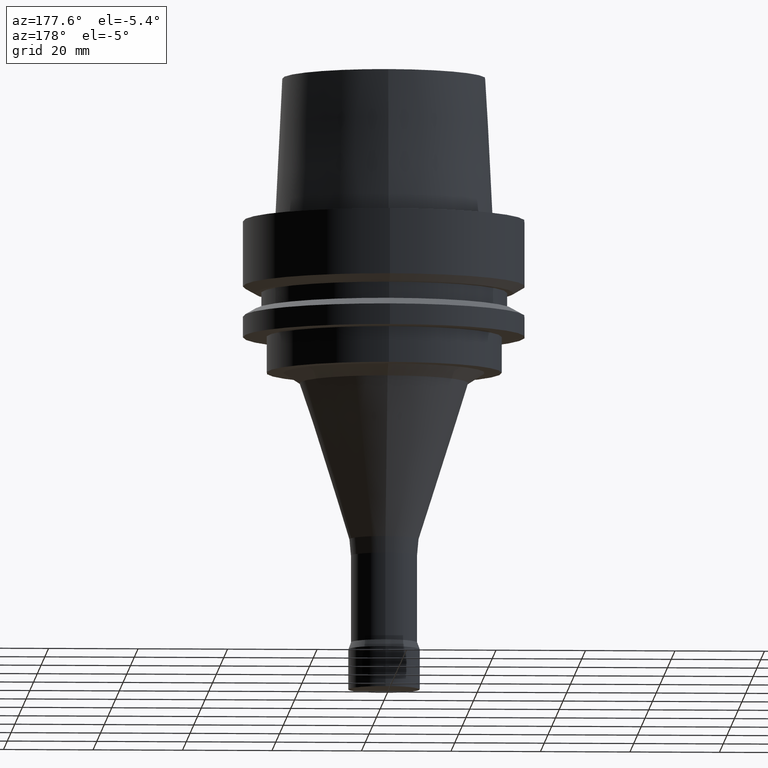
[diagram: clean part render]
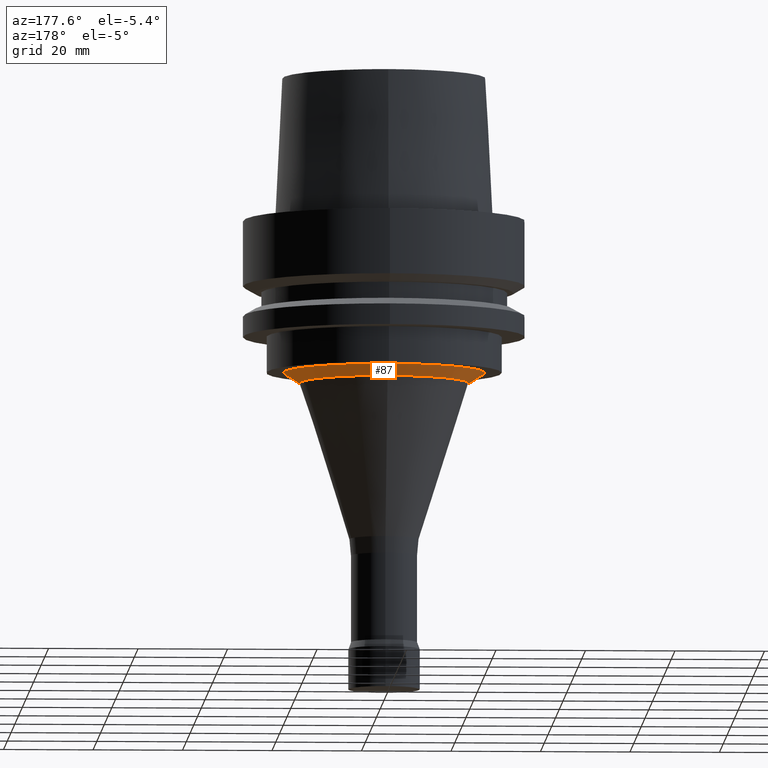
[diagram: same view with one face highlighted and labeled with its STEP entity id]
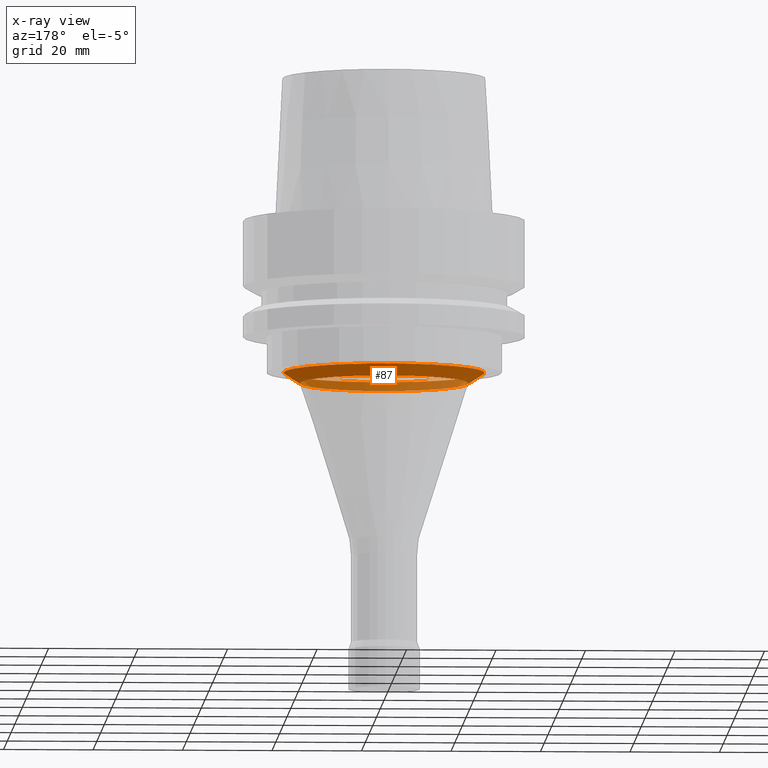
[diagram: x-ray of the same camera — body ghosted, the highlighted face saturated]
A machine part, auxiliary view. The second image highlights one B-rep face of the part: STEP entity #87.
The next image is the same camera in x-ray: the body ghosted, the highlighted face saturated — about 35% of this face is hidden behind the body in this view.
In plain terms, the highlighted conical surface has half-angle 57.333 deg.
Its self-contained STEP definition (entity closure, byte-faithful):
#87=ADVANCED_FACE('',(#131,#132),#133,.T.);
#131=FACE_BOUND('',#189,.T.);
#132=FACE_BOUND('',#190,.T.);
#133=CONICAL_SURFACE('',#191,20.6824838979311,1.00064714455817);
#189=EDGE_LOOP('',(#271));
#190=EDGE_LOOP('',(#272));
#191=AXIS2_PLACEMENT_3D('',#273,#274,#275);
#271=ORIENTED_EDGE('',*,*,#323,.F.);
#272=ORIENTED_EDGE('',*,*,#322,.T.);
#273=CARTESIAN_POINT('',(2.15325686413866E-015,4.30651372827732E-015,-35.1653532371594));
#274=DIRECTION('',(-6.12323399573677E-017,-1.22464679914735E-016,1.0));
#275=DIRECTION('',(-1.23259516440783E-032,1.0,1.22464679914735E-016));
#322=EDGE_CURVE('',#353,#353,#354,.T.);
#323=EDGE_CURVE('',#355,#355,#356,.T.);
#353=VERTEX_POINT('',#391);
#354=CIRCLE('',#392,22.5);
#355=VERTEX_POINT('',#393);
#356=CIRCLE('',#394,18.8649677958623);
#391=CARTESIAN_POINT('',(2.0818995585505E-015,22.5,-34.0));
#392=AXIS2_PLACEMENT_3D('',#441,#442,#443);
#393=CARTESIAN_POINT('',(2.22461416972682E-015,18.8649677958623,-36.3307064743187));
#394=AXIS2_PLACEMENT_3D('',#444,#445,#446);
#441=CARTESIAN_POINT('',(2.0818995585505E-015,4.163799117101E-015,-34.0));
#442=DIRECTION('',(6.12323399573677E-017,1.22464679914735E-016,-1.0));
#443=DIRECTION('',(-1.23259516440783E-032,1.0,1.22464679914735E-016));
#444=CARTESIAN_POINT('',(2.22461416972682E-015,4.44922833945364E-015,-36.3307064743187));
#445=DIRECTION('',(6.12323399573677E-017,1.22464679914735E-016,-1.0));
#446=DIRECTION('',(-1.23259516440783E-032,1.0,1.22464679914735E-016));